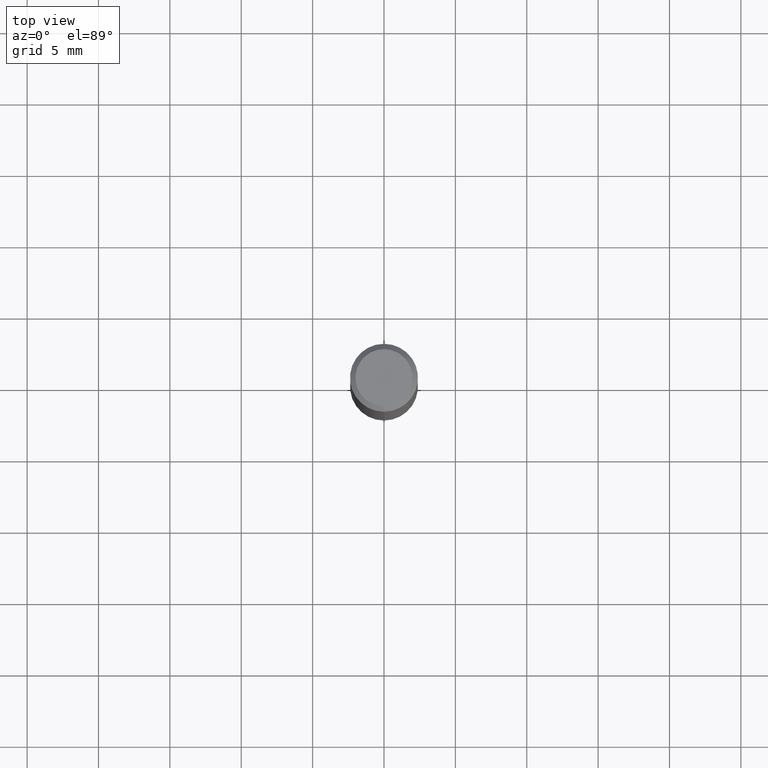
[diagram: clean part render]
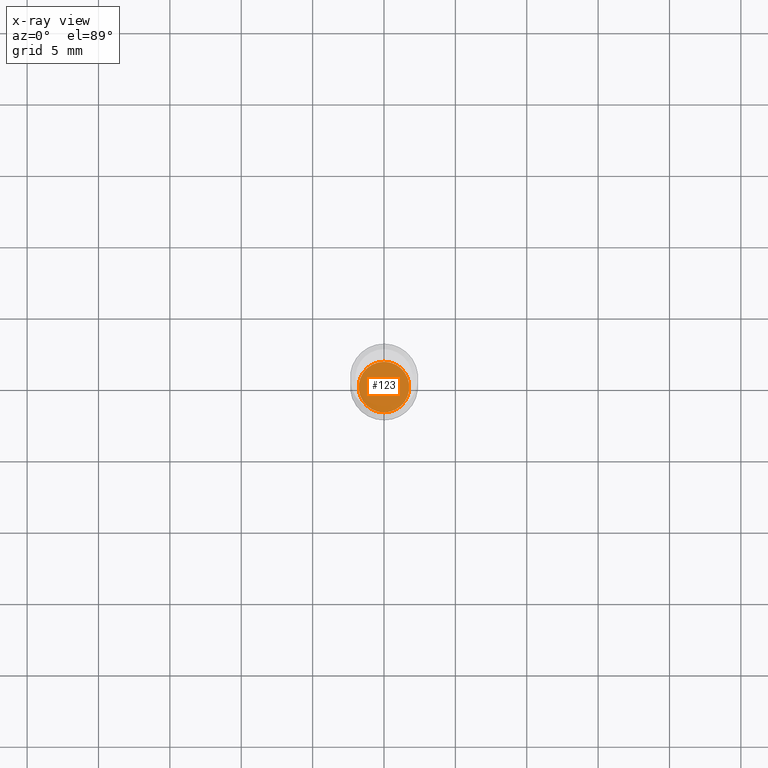
[diagram: x-ray — body ghosted, one internal face saturated and labeled with its STEP entity id]
A machine part, top view, then the same camera in x-ray: the body is ghosted and one INTERNAL B-rep face — a face not visible from any outside direction — is saturated and labeled: STEP entity #123.
In plain terms, the highlighted planar face has unit normal (-0, 0, 1).
Its self-contained STEP definition (entity closure, byte-faithful):
#5 = DIRECTION ( 'NONE',  ( -2.445022562880342820E-29, 3.492120384654201603E-15, 1.000000000000000000 ) ) ;
#6 = ORIENTED_EDGE ( 'NONE', *, *, #502, .F. ) ;
#21 = AXIS2_PLACEMENT_3D ( 'NONE', #177, #306, #134 ) ;
#23 = VERTEX_POINT ( 'NONE', #430 ) ;
#56 = CIRCLE ( 'NONE', #348, 0.06980000000000005644 ) ;
#84 = CARTESIAN_POINT ( 'NONE',  ( 3.667533844320514090E-29, -5.238180576981300827E-15, -1.499999999999999778 ) ) ;
#101 = DIRECTION ( 'NONE',  ( -6.982962677686265922E-15, -1.000000000000000000, 3.913822340493210566E-15 ) ) ;
#112 = FACE_OUTER_BOUND ( 'NONE', #261, .T. ) ;
#118 = ORIENTED_EDGE ( 'NONE', *, *, #490, .F. ) ;
#123 = ADVANCED_FACE ( 'NONE', ( #112 ), #272, .F. ) ;
#129 = CIRCLE ( 'NONE', #21, 0.06980000000000005644 ) ;
#134 = DIRECTION ( 'NONE',  ( -6.982962677686265922E-15, -1.000000000000000000, 3.913822340493210566E-15 ) ) ;
#161 = CARTESIAN_POINT ( 'NONE',  ( -4.874107949024650610E-16, -0.06980000000000530225, -1.499999999999999556 ) ) ;
#177 = CARTESIAN_POINT ( 'NONE',  ( 3.667533844320514090E-29, -5.238180576981300827E-15, -1.499999999999999778 ) ) ;
#261 = EDGE_LOOP ( 'NONE', ( #6, #118 ) ) ;
#272 = PLANE ( 'NONE',  #276 ) ;
#276 = AXIS2_PLACEMENT_3D ( 'NONE', #84, #5, #409 ) ;
#306 = DIRECTION ( 'NONE',  ( -2.445022562880343100E-29, 3.492120384654201603E-15, 1.000000000000000000 ) ) ;
#336 = DIRECTION ( 'NONE',  ( -2.445022562880343100E-29, 3.492120384654201603E-15, 1.000000000000000000 ) ) ;
#348 = AXIS2_PLACEMENT_3D ( 'NONE', #418, #336, #101 ) ;
#409 = DIRECTION ( 'NONE',  ( -6.982962677686265922E-15, -1.000000000000000000, 3.492120384654201603E-15 ) ) ;
#418 = CARTESIAN_POINT ( 'NONE',  ( 3.667533844320514090E-29, -5.238180576981300827E-15, -1.499999999999999778 ) ) ;
#429 = VERTEX_POINT ( 'NONE', #161 ) ;
#430 = CARTESIAN_POINT ( 'NONE',  ( 4.977351863999869690E-16, 0.06979999999999481064, -1.500000000000000222 ) ) ;
#490 = EDGE_CURVE ( 'NONE', #23, #429, #56, .T. ) ;
#502 = EDGE_CURVE ( 'NONE', #429, #23, #129, .T. ) ;